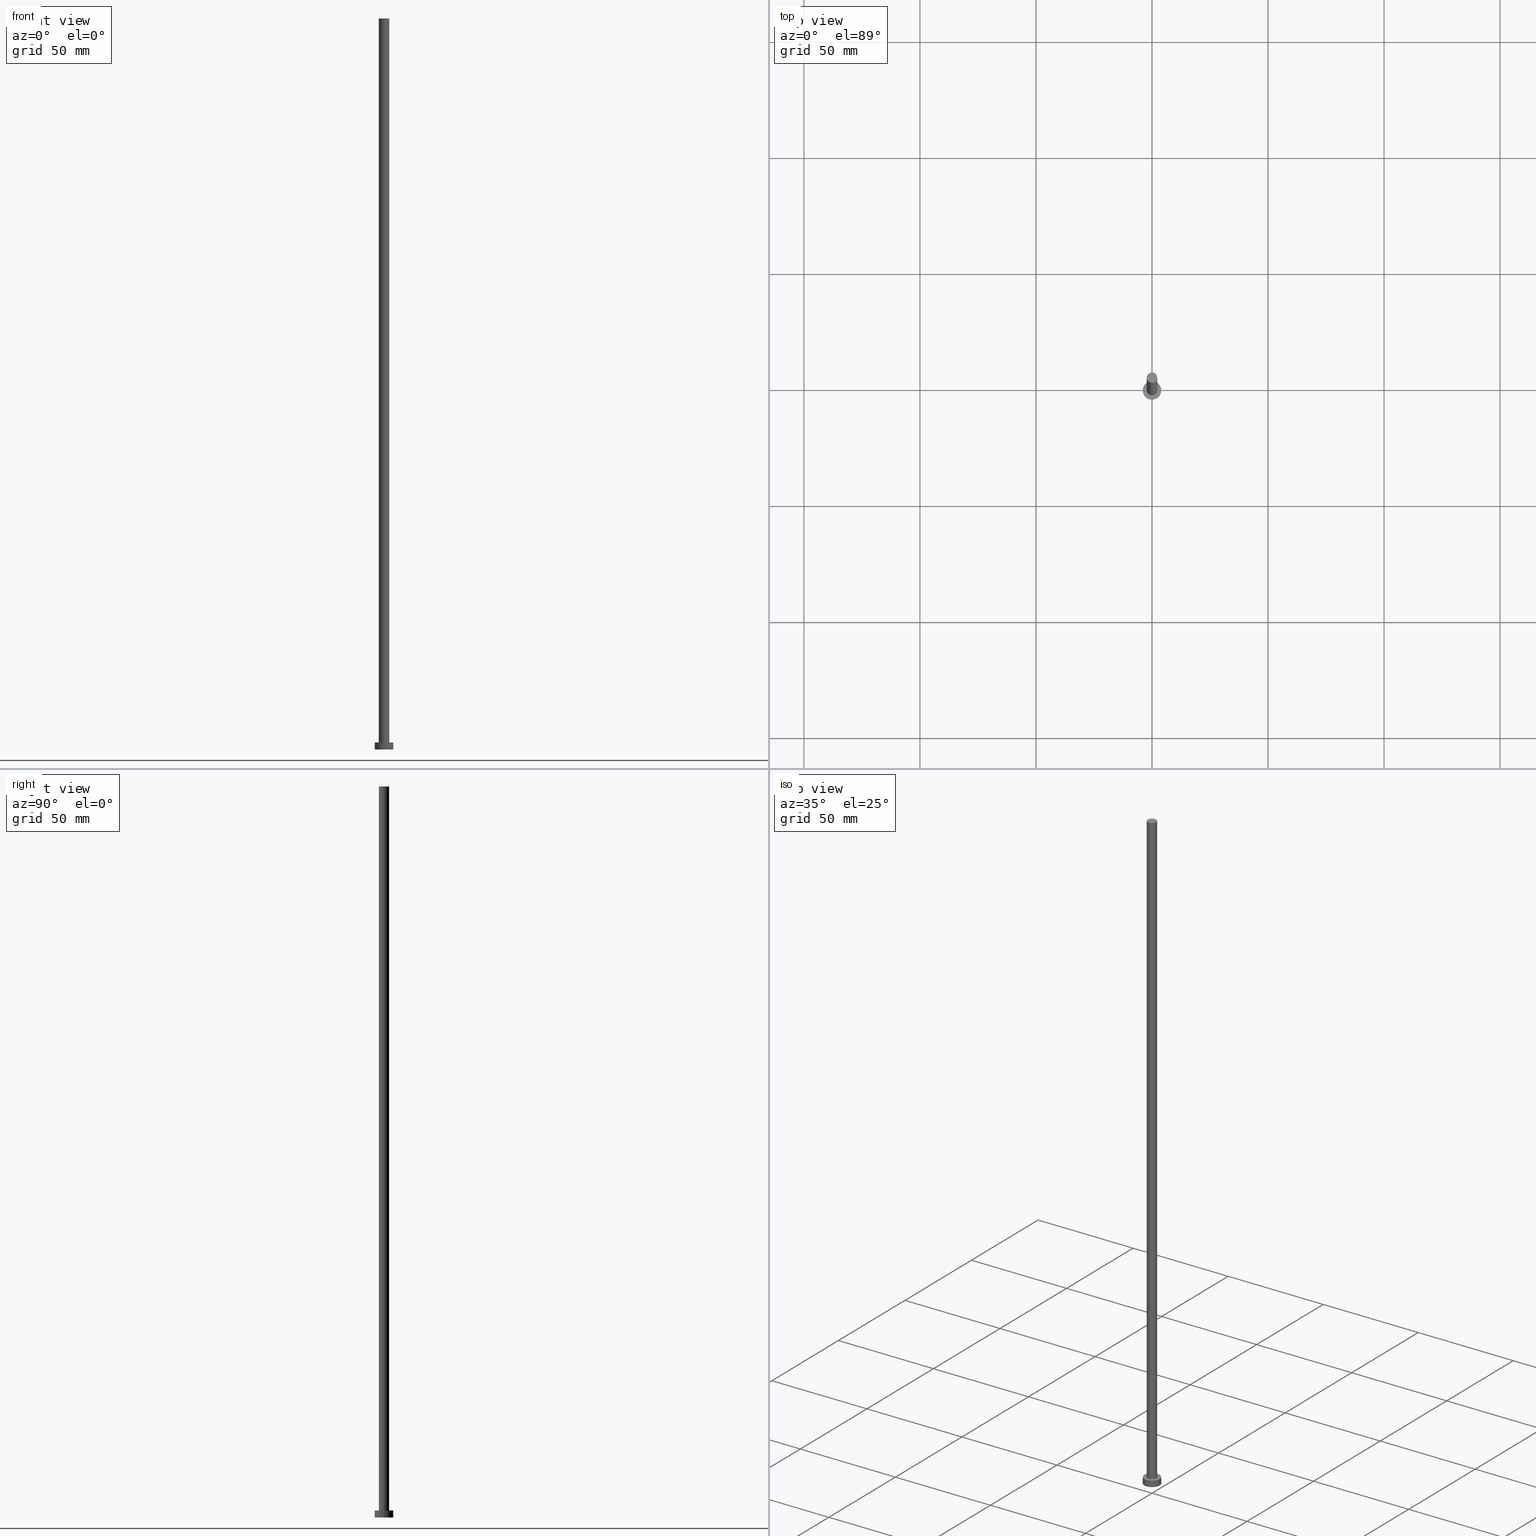
[diagram: canonical four-view strip — front | top / right | iso, engineering-drawing reading convention]
A machine part, canonical four-view strip (front | top / right | iso — engineering-drawing reading convention). The complete STEP part file that produces these views, byte-faithful:
ISO-10303-21;
HEADER;
FILE_DESCRIPTION (( 'STEP AP203' ),
    '1' );
FILE_NAME ('82d0.STEP',
    '2023-02-13T13:27:39',
    ( '' ),
    ( '' ),
    'SwSTEP 2.0',
    'SolidWorks 2019',
    '' );
FILE_SCHEMA (( 'CONFIG_CONTROL_DESIGN' ));
ENDSEC;

DATA;
#1 = APPROVAL_ROLE ( '' ) ;
#2 = FACE_OUTER_BOUND ( 'NONE', #168, .T. ) ;
#3 = CALENDAR_DATE ( 2023, 13, 2 ) ;
#4 = EDGE_CURVE ( 'NONE', #54, #226, #15, .T. ) ;
#5 = EDGE_LOOP ( 'NONE', ( #212, #189, #73, #176 ) ) ;
#6 = VERTEX_POINT ( 'NONE', #222 ) ;
#7 = MECHANICAL_CONTEXT ( 'NONE', #243, 'mechanical' ) ;
#8 = ORIENTED_EDGE ( 'NONE', *, *, #75, .T. ) ;
#9 = ORIENTED_EDGE ( 'NONE', *, *, #174, .T. ) ;
#10 = APPROVAL_STATUS ( 'not_yet_approved' ) ;
#11 = LOCAL_TIME ( 14, 27, 39.00000000000000000, #186 ) ;
#12 = APPROVAL_ROLE ( '' ) ;
#13 = CALENDAR_DATE ( 2023, 13, 2 ) ;
#14 = VECTOR ( 'NONE', #179, 1000.000000000000000 ) ;
#15 = LINE ( 'NONE', #103, #22 ) ;
#16 = EDGE_CURVE ( 'NONE', #201, #246, #59, .T. ) ;
#17 = ORGANIZATION ( 'NEUR�EN�', 'NEUR�EN�', '' ) ;
#18 = DESIGN_CONTEXT ( 'detailed design', #217, 'design' ) ;
#19 = ORIENTED_EDGE ( 'NONE', *, *, #174, .F. ) ;
#20 = CARTESIAN_POINT ( 'NONE',  ( 0.000000000000000000, 0.000000000000000000, 3.000000000000000000 ) ) ;
#21 = EDGE_CURVE ( 'NONE', #133, #226, #62, .T. ) ;
#22 = VECTOR ( 'NONE', #198, 1000.000000000000000 ) ;
#23 = ADVANCED_FACE ( 'NONE', ( #251, #60 ), #220, .T. ) ;
#24 = CALENDAR_DATE ( 2023, 13, 2 ) ;
#25 = UNCERTAINTY_MEASURE_WITH_UNIT (LENGTH_MEASURE( 1.000000000000000082E-05 ), #65, 'distance_accuracy_value', 'NONE');
#26 = ADVANCED_BREP_SHAPE_REPRESENTATION ( '82d0', ( #237, #202 ), #72 ) ;
#27 = PERSON_AND_ORGANIZATION ( #194, #17 ) ;
#28 = DIRECTION ( 'NONE',  ( 1.000000000000000000, 0.000000000000000000, -0.000000000000000000 ) ) ;
#29 = CARTESIAN_POINT ( 'NONE',  ( 0.000000000000000000, 0.000000000000000000, 315.0000000000000000 ) ) ;
#30 = APPROVAL_STATUS ( 'not_yet_approved' ) ;
#31 = CC_DESIGN_PERSON_AND_ORGANIZATION_ASSIGNMENT ( #167, #145, ( #165 ) ) ;
#32 = CARTESIAN_POINT ( 'NONE',  ( 0.000000000000000000, 0.000000000000000000, 315.0000000000000000 ) ) ;
#33 = APPROVAL_DATE_TIME ( #116, #141 ) ;
#34 = DIRECTION ( 'NONE',  ( 1.000000000000000000, 0.000000000000000000, -0.000000000000000000 ) ) ;
#35 = CC_DESIGN_PERSON_AND_ORGANIZATION_ASSIGNMENT ( #229, #129, ( #165 ) ) ;
#36 = CARTESIAN_POINT ( 'NONE',  ( 2.250000000000000000, 2.755455298081544285E-16, 315.0000000000000000 ) ) ;
#37 = CC_DESIGN_APPROVAL ( #112, ( #121 ) ) ;
#38 = DIRECTION ( 'NONE',  ( 1.000000000000000000, 0.000000000000000000, 0.000000000000000000 ) ) ;
#39 = CARTESIAN_POINT ( 'NONE',  ( 2.250000000000000000, 2.755455298081544285E-16, 315.0000000000000000 ) ) ;
#40 = CYLINDRICAL_SURFACE ( 'NONE', #66, 2.250000000000000000 ) ;
#41 = DIRECTION ( 'NONE',  ( 0.000000000000000000, 0.000000000000000000, 1.000000000000000000 ) ) ;
#42 = ORIENTED_EDGE ( 'NONE', *, *, #100, .F. ) ;
#43 = DIRECTION ( 'NONE',  ( 0.000000000000000000, 0.000000000000000000, 1.000000000000000000 ) ) ;
#44 = DIRECTION ( 'NONE',  ( 0.000000000000000000, 0.000000000000000000, 1.000000000000000000 ) ) ;
#45 = APPROVAL_STATUS ( 'not_yet_approved' ) ;
#46 = DIRECTION ( 'NONE',  ( -1.000000000000000000, 0.000000000000000000, 0.000000000000000000 ) ) ;
#47 = VECTOR ( 'NONE', #106, 1000.000000000000000 ) ;
#48 = EDGE_LOOP ( 'NONE', ( #8, #9 ) ) ;
#49 = FACE_OUTER_BOUND ( 'NONE', #181, .T. ) ;
#50 = ORIENTED_EDGE ( 'NONE', *, *, #77, .F. ) ;
#51 = CARTESIAN_POINT ( 'NONE',  ( 2.250000000000000000, 2.755455298081544285E-16, 3.000000000000000000 ) ) ;
#52 = CC_DESIGN_DATE_AND_TIME_ASSIGNMENT ( #149, #127, ( #121 ) ) ;
#53 = EDGE_CURVE ( 'NONE', #115, #246, #164, .T. ) ;
#54 = VERTEX_POINT ( 'NONE', #99 ) ;
#55 = AXIS2_PLACEMENT_3D ( 'NONE', #136, #221, #38 ) ;
#56 = CIRCLE ( 'NONE', #55, 2.250000000000000000 ) ;
#57 = CALENDAR_DATE ( 2023, 13, 2 ) ;
#58 = VECTOR ( 'NONE', #242, 1000.000000000000000 ) ;
#59 = LINE ( 'NONE', #98, #14 ) ;
#60 = FACE_OUTER_BOUND ( 'NONE', #126, .T. ) ;
#61 = DIRECTION ( 'NONE',  ( 1.000000000000000000, 0.000000000000000000, 0.000000000000000000 ) ) ;
#62 = CIRCLE ( 'NONE', #216, 2.250000000000000000 ) ;
#63 = DIRECTION ( 'NONE',  ( 1.000000000000000000, 0.000000000000000000, 0.000000000000000000 ) ) ;
#64 = AXIS2_PLACEMENT_3D ( 'NONE', #29, #71, #232 ) ;
#65 =( LENGTH_UNIT ( ) NAMED_UNIT ( * ) SI_UNIT ( .MILLI., .METRE. ) );
#66 = AXIS2_PLACEMENT_3D ( 'NONE', #185, #146, #89 ) ;
#67 =( NAMED_UNIT ( * ) SI_UNIT ( $, .STERADIAN. ) SOLID_ANGLE_UNIT ( ) );
#68 = CC_DESIGN_PERSON_AND_ORGANIZATION_ASSIGNMENT ( #27, #69, ( #121 ) ) ;
#69 = PERSON_AND_ORGANIZATION_ROLE ( 'creator' ) ;
#70 = EDGE_CURVE ( 'NONE', #226, #133, #188, .T. ) ;
#71 = DIRECTION ( 'NONE',  ( 0.000000000000000000, 0.000000000000000000, 1.000000000000000000 ) ) ;
#72 =( GEOMETRIC_REPRESENTATION_CONTEXT ( 3 ) GLOBAL_UNCERTAINTY_ASSIGNED_CONTEXT ( ( #25 ) ) GLOBAL_UNIT_ASSIGNED_CONTEXT ( ( #65, #183, #67 ) ) REPRESENTATION_CONTEXT ( 'NONE', 'WORKASPACE' ) );
#73 = ORIENTED_EDGE ( 'NONE', *, *, #77, .T. ) ;
#74 = DIRECTION ( 'NONE',  ( -0.000000000000000000, -0.000000000000000000, -1.000000000000000000 ) ) ;
#75 = EDGE_CURVE ( 'NONE', #54, #84, #56, .T. ) ;
#76 = CC_DESIGN_APPROVAL ( #80, ( #165 ) ) ;
#77 = EDGE_CURVE ( 'NONE', #6, #115, #223, .T. ) ;
#78 = COORDINATED_UNIVERSAL_TIME_OFFSET ( 1, 0, .AHEAD. ) ;
#79 = DIRECTION ( 'NONE',  ( -0.000000000000000000, -0.000000000000000000, -1.000000000000000000 ) ) ;
#80 = APPROVAL ( #45, 'NEUR�EN�' ) ;
#81 = AXIS2_PLACEMENT_3D ( 'NONE', #118, #158, #63 ) ;
#82 = LINE ( 'NONE', #36, #58 ) ;
#83 = CARTESIAN_POINT ( 'NONE',  ( 0.000000000000000000, 0.000000000000000000, 0.000000000000000000 ) ) ;
#84 = VERTEX_POINT ( 'NONE', #39 ) ;
#85 = APPROVAL_DATE_TIME ( #130, #80 ) ;
#86 = CIRCLE ( 'NONE', #210, 4.000000000000000000 ) ;
#87 = COORDINATED_UNIVERSAL_TIME_OFFSET ( 1, 0, .AHEAD. ) ;
#88 = EDGE_LOOP ( 'NONE', ( #187, #111, #90, #244 ) ) ;
#89 = DIRECTION ( 'NONE',  ( -1.000000000000000000, 0.000000000000000000, 0.000000000000000000 ) ) ;
#90 = ORIENTED_EDGE ( 'NONE', *, *, #4, .T. ) ;
#91 = PRODUCT_DEFINITION_SHAPE ( 'NONE', 'NONE',  #121 ) ;
#92 = LOCAL_TIME ( 14, 27, 39.00000000000000000, #87 ) ;
#93 = DIRECTION ( 'NONE',  ( 0.000000000000000000, 0.000000000000000000, 1.000000000000000000 ) ) ;
#94 = PERSON_AND_ORGANIZATION ( #194, #17 ) ;
#95 = FACE_OUTER_BOUND ( 'NONE', #5, .T. ) ;
#96 = DATE_TIME_ROLE ( 'classification_date' ) ;
#97 = CIRCLE ( 'NONE', #108, 4.000000000000000000 ) ;
#98 = CARTESIAN_POINT ( 'NONE',  ( 4.000000000000000000, 4.898587196589412829E-16, 3.000000000000000000 ) ) ;
#99 = CARTESIAN_POINT ( 'NONE',  ( -2.250000000000000000, 0.000000000000000000, 315.0000000000000000 ) ) ;
#100 = EDGE_CURVE ( 'NONE', #246, #115, #200, .T. ) ;
#101 = ADVANCED_FACE ( 'NONE', ( #204 ), #40, .T. ) ;
#102 = AXIS2_PLACEMENT_3D ( 'NONE', #120, #234, #173 ) ;
#103 = CARTESIAN_POINT ( 'NONE',  ( -2.250000000000000000, 0.000000000000000000, 315.0000000000000000 ) ) ;
#104 = APPLICATION_PROTOCOL_DEFINITION ( 'international standard', 'config_control_design', 1994, #243 ) ;
#105 = EDGE_LOOP ( 'NONE', ( #19, #193, #247, #140 ) ) ;
#106 = DIRECTION ( 'NONE',  ( -0.000000000000000000, -0.000000000000000000, -1.000000000000000000 ) ) ;
#107 = DATE_AND_TIME ( #24, #171 ) ;
#108 = AXIS2_PLACEMENT_3D ( 'NONE', #230, #44, #170 ) ;
#109 = PERSON_AND_ORGANIZATION ( #194, #17 ) ;
#110 = AXIS2_PLACEMENT_3D ( 'NONE', #83, #254, #225 ) ;
#111 = ORIENTED_EDGE ( 'NONE', *, *, #75, .F. ) ;
#112 = APPROVAL ( #30, 'NEUR�EN�' ) ;
#113 = ORIENTED_EDGE ( 'NONE', *, *, #100, .T. ) ;
#114 = CLOSED_SHELL ( 'NONE', ( #101, #144, #203, #23, #196, #235, #184 ) ) ;
#115 = VERTEX_POINT ( 'NONE', #233 ) ;
#116 = DATE_AND_TIME ( #57, #162 ) ;
#117 = APPROVAL_PERSON_ORGANIZATION ( #94, #141, #12 ) ;
#118 = CARTESIAN_POINT ( 'NONE',  ( 0.000000000000000000, 0.000000000000000000, 3.000000000000000000 ) ) ;
#119 = EDGE_CURVE ( 'NONE', #6, #201, #86, .T. ) ;
#120 = CARTESIAN_POINT ( 'NONE',  ( 0.000000000000000000, 0.000000000000000000, 0.000000000000000000 ) ) ;
#121 = PRODUCT_DEFINITION ( 'NEZN�M�', '', #165, #18 ) ;
#122 = AXIS2_PLACEMENT_3D ( 'NONE', #143, #41, #152 ) ;
#123 = APPROVAL_PERSON_ORGANIZATION ( #109, #80, #207 ) ;
#124 = PERSON_AND_ORGANIZATION ( #194, #17 ) ;
#125 = CARTESIAN_POINT ( 'NONE',  ( -4.000000000000000000, 0.000000000000000000, 3.000000000000000000 ) ) ;
#126 = EDGE_LOOP ( 'NONE', ( #182, #151 ) ) ;
#127 = DATE_TIME_ROLE ( 'creation_date' ) ;
#128 = CARTESIAN_POINT ( 'NONE',  ( 0.000000000000000000, 0.000000000000000000, 0.000000000000000000 ) ) ;
#129 = PERSON_AND_ORGANIZATION_ROLE ( 'design_supplier' ) ;
#130 = DATE_AND_TIME ( #3, #11 ) ;
#131 = PLANE ( 'NONE',  #139 ) ;
#132 = AXIS2_PLACEMENT_3D ( 'NONE', #32, #172, #215 ) ;
#133 = VERTEX_POINT ( 'NONE', #51 ) ;
#134 = COORDINATED_UNIVERSAL_TIME_OFFSET ( 1, 0, .AHEAD. ) ;
#135 = CARTESIAN_POINT ( 'NONE',  ( -2.250000000000000000, 0.000000000000000000, 3.000000000000000000 ) ) ;
#136 = CARTESIAN_POINT ( 'NONE',  ( 0.000000000000000000, 0.000000000000000000, 315.0000000000000000 ) ) ;
#137 = EDGE_CURVE ( 'NONE', #201, #6, #97, .T. ) ;
#138 = CIRCLE ( 'NONE', #122, 2.250000000000000000 ) ;
#139 = AXIS2_PLACEMENT_3D ( 'NONE', #128, #206, #28 ) ;
#140 = ORIENTED_EDGE ( 'NONE', *, *, #4, .F. ) ;
#141 = APPROVAL ( #10, 'NEUR�EN�' ) ;
#142 = CALENDAR_DATE ( 2023, 13, 2 ) ;
#143 = CARTESIAN_POINT ( 'NONE',  ( 0.000000000000000000, 0.000000000000000000, 315.0000000000000000 ) ) ;
#144 = ADVANCED_FACE ( 'NONE', ( #2 ), #166, .T. ) ;
#145 = PERSON_AND_ORGANIZATION_ROLE ( 'creator' ) ;
#146 = DIRECTION ( 'NONE',  ( -0.000000000000000000, -0.000000000000000000, -1.000000000000000000 ) ) ;
#147 = APPROVAL_PERSON_ORGANIZATION ( #124, #112, #1 ) ;
#148 = CC_DESIGN_SECURITY_CLASSIFICATION ( #195, ( #165 ) ) ;
#149 = DATE_AND_TIME ( #142, #92 ) ;
#150 = CARTESIAN_POINT ( 'NONE',  ( 0.000000000000000000, 0.000000000000000000, 3.000000000000000000 ) ) ;
#151 = ORIENTED_EDGE ( 'NONE', *, *, #137, .T. ) ;
#152 = DIRECTION ( 'NONE',  ( 1.000000000000000000, 0.000000000000000000, 0.000000000000000000 ) ) ;
#153 = DIRECTION ( 'NONE',  ( 1.000000000000000000, 0.000000000000000000, 0.000000000000000000 ) ) ;
#154 = SHAPE_DEFINITION_REPRESENTATION ( #91, #26 ) ;
#155 = PERSON_AND_ORGANIZATION ( #194, #17 ) ;
#156 = PRODUCT ( '82d0', '82d0', '', ( #7 ) ) ;
#157 = CC_DESIGN_PERSON_AND_ORGANIZATION_ASSIGNMENT ( #228, #227, ( #156 ) ) ;
#158 = DIRECTION ( 'NONE',  ( 0.000000000000000000, 0.000000000000000000, 1.000000000000000000 ) ) ;
#159 = AXIS2_PLACEMENT_3D ( 'NONE', #236, #93, #34 ) ;
#160 = ORIENTED_EDGE ( 'NONE', *, *, #21, .F. ) ;
#161 = LOCAL_TIME ( 14, 27, 39.00000000000000000, #78 ) ;
#162 = LOCAL_TIME ( 14, 27, 39.00000000000000000, #134 ) ;
#163 = EDGE_LOOP ( 'NONE', ( #231, #160 ) ) ;
#164 = CIRCLE ( 'NONE', #102, 4.000000000000000000 ) ;
#165 = PRODUCT_DEFINITION_FORMATION_WITH_SPECIFIED_SOURCE ( 'LIBOVOLN�', '', #156, .NOT_KNOWN. ) ;
#166 = CYLINDRICAL_SURFACE ( 'NONE', #197, 4.000000000000000000 ) ;
#167 = PERSON_AND_ORGANIZATION ( #194, #17 ) ;
#168 = EDGE_LOOP ( 'NONE', ( #253, #255, #113, #50 ) ) ;
#169 = APPLICATION_PROTOCOL_DEFINITION ( 'international standard', 'config_control_design', 1994, #217 ) ;
#170 = DIRECTION ( 'NONE',  ( 1.000000000000000000, 0.000000000000000000, 0.000000000000000000 ) ) ;
#171 = LOCAL_TIME ( 14, 27, 39.00000000000000000, #205 ) ;
#172 = DIRECTION ( 'NONE',  ( -0.000000000000000000, -0.000000000000000000, -1.000000000000000000 ) ) ;
#173 = DIRECTION ( 'NONE',  ( 1.000000000000000000, 0.000000000000000000, 0.000000000000000000 ) ) ;
#174 = EDGE_CURVE ( 'NONE', #84, #54, #138, .T. ) ;
#175 = PERSON_AND_ORGANIZATION_ROLE ( 'classification_officer' ) ;
#176 = ORIENTED_EDGE ( 'NONE', *, *, #53, .T. ) ;
#177 = FACE_OUTER_BOUND ( 'NONE', #88, .T. ) ;
#178 = CC_DESIGN_APPROVAL ( #141, ( #195 ) ) ;
#179 = DIRECTION ( 'NONE',  ( -0.000000000000000000, -0.000000000000000000, -1.000000000000000000 ) ) ;
#180 = CARTESIAN_POINT ( 'NONE',  ( 4.000000000000000000, 4.898587196589412829E-16, 3.000000000000000000 ) ) ;
#181 = EDGE_LOOP ( 'NONE', ( #240, #42 ) ) ;
#182 = ORIENTED_EDGE ( 'NONE', *, *, #119, .T. ) ;
#183 =( NAMED_UNIT ( * ) PLANE_ANGLE_UNIT ( ) SI_UNIT ( $, .RADIAN. ) );
#184 = ADVANCED_FACE ( 'NONE', ( #248 ), #211, .T. ) ;
#185 = CARTESIAN_POINT ( 'NONE',  ( 0.000000000000000000, 0.000000000000000000, 315.0000000000000000 ) ) ;
#186 = COORDINATED_UNIVERSAL_TIME_OFFSET ( 1, 0, .AHEAD. ) ;
#187 = ORIENTED_EDGE ( 'NONE', *, *, #252, .F. ) ;
#188 = CIRCLE ( 'NONE', #81, 2.250000000000000000 ) ;
#189 = ORIENTED_EDGE ( 'NONE', *, *, #119, .F. ) ;
#190 = DIRECTION ( 'NONE',  ( 1.000000000000000000, 0.000000000000000000, 0.000000000000000000 ) ) ;
#191 = DIRECTION ( 'NONE',  ( 0.000000000000000000, 0.000000000000000000, 1.000000000000000000 ) ) ;
#192 = CARTESIAN_POINT ( 'NONE',  ( 0.000000000000000000, 0.000000000000000000, 3.000000000000000000 ) ) ;
#193 = ORIENTED_EDGE ( 'NONE', *, *, #252, .T. ) ;
#194 = PERSON ( 'NEUR�EN�', 'NEUR�EN�', 'NEUR�EN�', ('NEUR�EN�'), ('NEUR�EN�'), ('NEUR�EN�') ) ;
#195 = SECURITY_CLASSIFICATION ( '', '', #209 ) ;
#196 = ADVANCED_FACE ( 'NONE', ( #49 ), #131, .F. ) ;
#197 = AXIS2_PLACEMENT_3D ( 'NONE', #150, #74, #46 ) ;
#198 = DIRECTION ( 'NONE',  ( -0.000000000000000000, -0.000000000000000000, -1.000000000000000000 ) ) ;
#199 = CARTESIAN_POINT ( 'NONE',  ( 0.000000000000000000, 0.000000000000000000, 0.000000000000000000 ) ) ;
#200 = CIRCLE ( 'NONE', #110, 4.000000000000000000 ) ;
#201 = VERTEX_POINT ( 'NONE', #180 ) ;
#202 = AXIS2_PLACEMENT_3D ( 'NONE', #199, #43, #190 ) ;
#203 = ADVANCED_FACE ( 'NONE', ( #95 ), #219, .T. ) ;
#204 = FACE_OUTER_BOUND ( 'NONE', #105, .T. ) ;
#205 = COORDINATED_UNIVERSAL_TIME_OFFSET ( 1, 0, .AHEAD. ) ;
#206 = DIRECTION ( 'NONE',  ( 0.000000000000000000, 0.000000000000000000, 1.000000000000000000 ) ) ;
#207 = APPROVAL_ROLE ( '' ) ;
#208 = CC_DESIGN_DATE_AND_TIME_ASSIGNMENT ( #213, #96, ( #195 ) ) ;
#209 = SECURITY_CLASSIFICATION_LEVEL ( 'unclassified' ) ;
#210 = AXIS2_PLACEMENT_3D ( 'NONE', #192, #191, #153 ) ;
#211 = PLANE ( 'NONE',  #64 ) ;
#212 = ORIENTED_EDGE ( 'NONE', *, *, #16, .F. ) ;
#213 = DATE_AND_TIME ( #13, #161 ) ;
#214 = CYLINDRICAL_SURFACE ( 'NONE', #132, 2.250000000000000000 ) ;
#215 = DIRECTION ( 'NONE',  ( -1.000000000000000000, 0.000000000000000000, 0.000000000000000000 ) ) ;
#216 = AXIS2_PLACEMENT_3D ( 'NONE', #20, #238, #61 ) ;
#217 = APPLICATION_CONTEXT ( 'configuration controlled 3d designs of mechanical parts and assemblies' ) ;
#218 = CARTESIAN_POINT ( 'NONE',  ( 4.000000000000000000, 4.898587196589412829E-16, 0.000000000000000000 ) ) ;
#219 = CYLINDRICAL_SURFACE ( 'NONE', #241, 4.000000000000000000 ) ;
#220 = PLANE ( 'NONE',  #159 ) ;
#221 = DIRECTION ( 'NONE',  ( 0.000000000000000000, 0.000000000000000000, 1.000000000000000000 ) ) ;
#222 = CARTESIAN_POINT ( 'NONE',  ( -4.000000000000000000, 0.000000000000000000, 3.000000000000000000 ) ) ;
#223 = LINE ( 'NONE', #125, #47 ) ;
#224 = PRODUCT_RELATED_PRODUCT_CATEGORY ( 'detail', '', ( #156 ) ) ;
#225 = DIRECTION ( 'NONE',  ( 1.000000000000000000, 0.000000000000000000, 0.000000000000000000 ) ) ;
#226 = VERTEX_POINT ( 'NONE', #135 ) ;
#227 = PERSON_AND_ORGANIZATION_ROLE ( 'design_owner' ) ;
#228 = PERSON_AND_ORGANIZATION ( #194, #17 ) ;
#229 = PERSON_AND_ORGANIZATION ( #194, #17 ) ;
#230 = CARTESIAN_POINT ( 'NONE',  ( 0.000000000000000000, 0.000000000000000000, 3.000000000000000000 ) ) ;
#231 = ORIENTED_EDGE ( 'NONE', *, *, #70, .F. ) ;
#232 = DIRECTION ( 'NONE',  ( 1.000000000000000000, 0.000000000000000000, -0.000000000000000000 ) ) ;
#233 = CARTESIAN_POINT ( 'NONE',  ( -4.000000000000000000, 0.000000000000000000, 0.000000000000000000 ) ) ;
#234 = DIRECTION ( 'NONE',  ( 0.000000000000000000, 0.000000000000000000, 1.000000000000000000 ) ) ;
#235 = ADVANCED_FACE ( 'NONE', ( #177 ), #214, .T. ) ;
#236 = CARTESIAN_POINT ( 'NONE',  ( 0.000000000000000000, 0.000000000000000000, 3.000000000000000000 ) ) ;
#237 = MANIFOLD_SOLID_BREP ( 'P�idat vysunut�m3', #114 ) ;
#238 = DIRECTION ( 'NONE',  ( 0.000000000000000000, 0.000000000000000000, 1.000000000000000000 ) ) ;
#239 = DIRECTION ( 'NONE',  ( -1.000000000000000000, 0.000000000000000000, 0.000000000000000000 ) ) ;
#240 = ORIENTED_EDGE ( 'NONE', *, *, #53, .F. ) ;
#241 = AXIS2_PLACEMENT_3D ( 'NONE', #250, #79, #239 ) ;
#242 = DIRECTION ( 'NONE',  ( -0.000000000000000000, -0.000000000000000000, -1.000000000000000000 ) ) ;
#243 = APPLICATION_CONTEXT ( 'configuration controlled 3d designs of mechanical parts and assemblies' ) ;
#244 = ORIENTED_EDGE ( 'NONE', *, *, #70, .T. ) ;
#245 = APPROVAL_DATE_TIME ( #107, #112 ) ;
#246 = VERTEX_POINT ( 'NONE', #218 ) ;
#247 = ORIENTED_EDGE ( 'NONE', *, *, #21, .T. ) ;
#248 = FACE_OUTER_BOUND ( 'NONE', #48, .T. ) ;
#249 = CC_DESIGN_PERSON_AND_ORGANIZATION_ASSIGNMENT ( #155, #175, ( #195 ) ) ;
#250 = CARTESIAN_POINT ( 'NONE',  ( 0.000000000000000000, 0.000000000000000000, 3.000000000000000000 ) ) ;
#251 = FACE_BOUND ( 'NONE', #163, .T. ) ;
#252 = EDGE_CURVE ( 'NONE', #84, #133, #82, .T. ) ;
#253 = ORIENTED_EDGE ( 'NONE', *, *, #137, .F. ) ;
#254 = DIRECTION ( 'NONE',  ( 0.000000000000000000, 0.000000000000000000, 1.000000000000000000 ) ) ;
#255 = ORIENTED_EDGE ( 'NONE', *, *, #16, .T. ) ;
ENDSEC;
END-ISO-10303-21;
